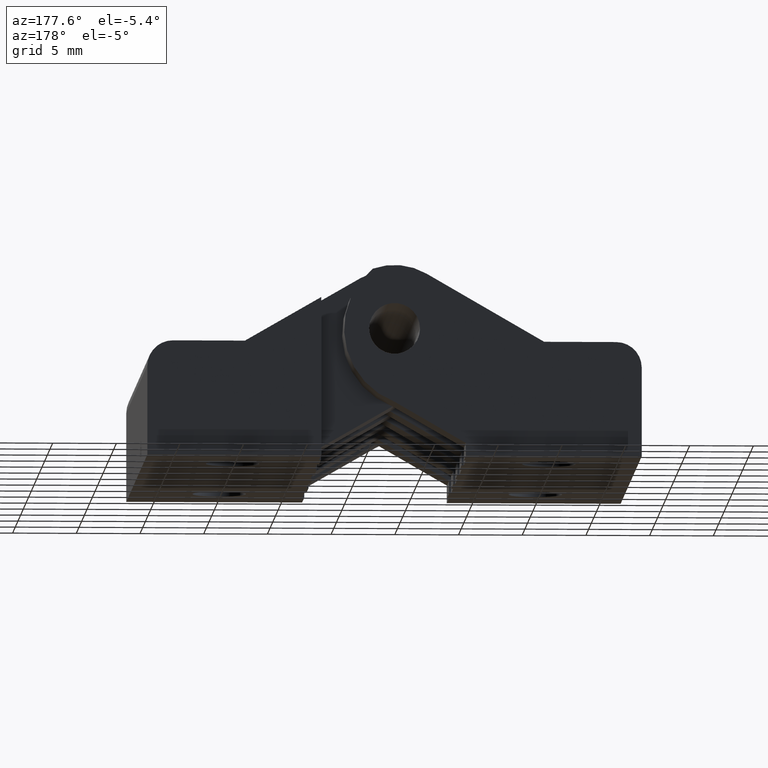
[diagram: clean part render]
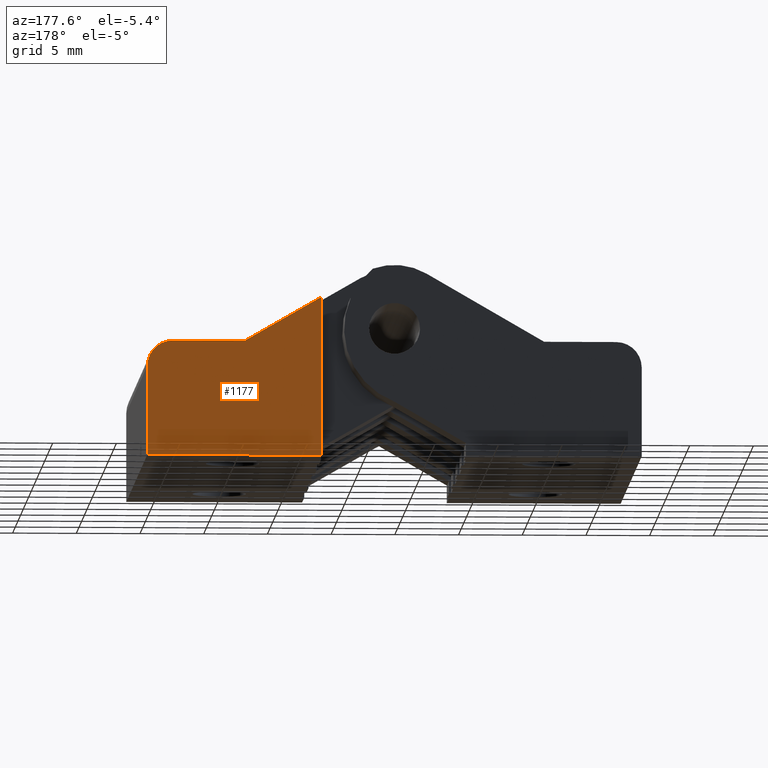
[diagram: same view with one face highlighted and labeled with its STEP entity id]
A machine part, auxiliary view. The second image highlights one B-rep face of the part: STEP entity #1177.
In plain terms, the highlighted planar face has unit normal (0, -1, 0).
Its self-contained STEP definition (entity closure, byte-faithful):
#527=CARTESIAN_POINT('',(31.799999999872881,6.799999999814439,-4.163799E-016));
#528=VERTEX_POINT('',#527);
#644=CARTESIAN_POINT('',(18.153425809773296,6.799999999814439,-4.163799E-016));
#645=VERTEX_POINT('',#644);
#652=CARTESIAN_POINT('',(18.153425809773296,6.799999999814439,-4.163799E-016));
#653=DIRECTION('',(1.0,0.0,0.0));
#654=VECTOR('',#653,13.646574190099585);
#655=LINE('',#652,#654);
#656=EDGE_CURVE('',#645,#528,#655,.T.);
#706=CARTESIAN_POINT('',(31.799999999872881,6.799999999814439,6.999999999972005));
#707=VERTEX_POINT('',#706);
#708=CARTESIAN_POINT('',(31.799999999872881,6.799999999814439,-4.163799E-016));
#709=DIRECTION('',(0.0,0.0,1.0));
#710=VECTOR('',#709,6.999999999972005);
#711=LINE('',#708,#710);
#712=EDGE_CURVE('',#528,#707,#711,.T.);
#737=CARTESIAN_POINT('',(29.799999999881010,6.799999999814440,8.999999999963819));
#738=VERTEX_POINT('',#737);
#739=CARTESIAN_POINT('',(29.799999999881010,6.799999999814439,6.999999999971949));
#740=DIRECTION('',(0.0,-1.0,6.123234E-017));
#741=DIRECTION('',(1.0,1.740328E-030,2.842171E-014));
#742=AXIS2_PLACEMENT_3D('',#739,#740,#741);
#743=CIRCLE('',#742,1.999999999991871);
#744=EDGE_CURVE('',#707,#738,#743,.T.);
#770=CARTESIAN_POINT('',(24.143593539352480,6.799999999814440,8.999999999963819));
#771=VERTEX_POINT('',#770);
#772=CARTESIAN_POINT('',(29.799999999881010,6.799999999814440,8.999999999963819));
#773=DIRECTION('',(-1.0,0.0,0.0));
#774=VECTOR('',#773,5.656406460528530);
#775=LINE('',#772,#774);
#776=EDGE_CURVE('',#738,#771,#775,.T.);
#910=CARTESIAN_POINT('',(18.153425809773296,6.799999999814440,12.458424951127569));
#911=VERTEX_POINT('',#910);
#912=CARTESIAN_POINT('',(24.143593539352480,6.799999999814440,8.999999999963819));
#913=DIRECTION('',(-0.866025403784427,0.0,0.500000000000021));
#914=VECTOR('',#913,6.916849902327198);
#915=LINE('',#912,#914);
#916=EDGE_CURVE('',#771,#911,#915,.T.);
#1159=CARTESIAN_POINT('',(6.106785609983859,6.799999999814439,-1.500671144736359));
#1160=DIRECTION('',(0.0,-1.0,0.0));
#1161=DIRECTION('',(1.0,0.0,0.0));
#1162=AXIS2_PLACEMENT_3D('',#1159,#1160,#1161);
#1163=PLANE('',#1162);
#1164=ORIENTED_EDGE('',*,*,#656,.F.);
#1165=CARTESIAN_POINT('',(18.153425809773296,6.799999999972442,0.0));
#1166=DIRECTION('',(0.0,0.0,1.0));
#1167=VECTOR('',#1166,12.458424951127569);
#1168=LINE('',#1165,#1167);
#1169=EDGE_CURVE('',#645,#911,#1168,.T.);
#1170=ORIENTED_EDGE('',*,*,#1169,.T.);
#1171=ORIENTED_EDGE('',*,*,#916,.F.);
#1172=ORIENTED_EDGE('',*,*,#776,.F.);
#1173=ORIENTED_EDGE('',*,*,#744,.F.);
#1174=ORIENTED_EDGE('',*,*,#712,.F.);
#1175=EDGE_LOOP('',(#1164,#1170,#1171,#1172,#1173,#1174));
#1176=FACE_OUTER_BOUND('',#1175,.T.);
#1177=ADVANCED_FACE('',(#1176),#1163,.F.);